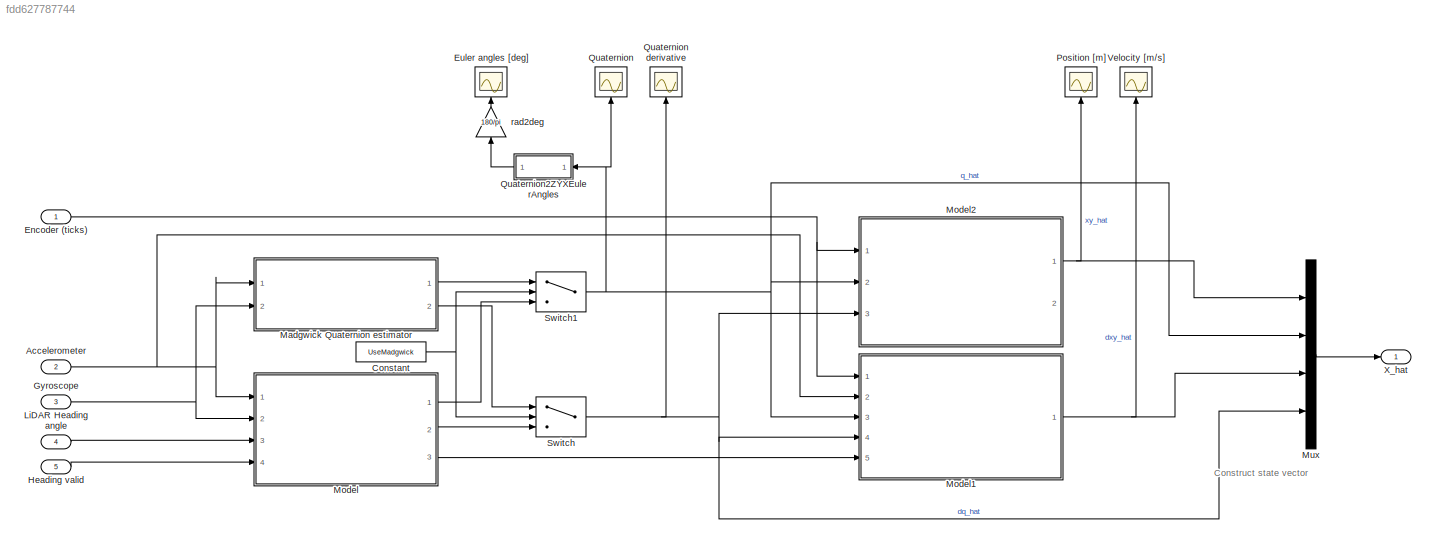
MODEL slx_fdd627787744
KIND model
CONFIG AbsTol = auto
CONFIG EnableMultiTasking = off
CONFIG FixedStep = auto
CONFIG InitFcn = Parameters_Estimators\nParameters_Simulation
CONFIG MaxStep = auto
CONFIG MinStep = auto
CONFIG PreLoadFcn = modelDir = fileparts(get_param(bdroot, 'FileName'));\naddpath(fullfile(modelDir));\naddpath(fullfile(modelDir,'../../Parameters'));\naddpath(fullfile(modelDir,'../../Misc'));\n\nParameters_Estimators\nParameters_Simulation
CONFIG RelTol = 1e-3
CONFIG SampleTimeConstraint = Unconstrained
CONFIG Solver = VariableStepAuto
CONFIG SolverName = VariableStepAuto
CONFIG StartTime = 0.0
CONFIG StopTime = 10.0
BLOCK [Inport] Accelerometer
  IconDisplay = Port number
  Port = 2
BLOCK [Constant] Constant
  Value = UseMadgwick
BLOCK [Inport] Encoder (ticks)
  IconDisplay = Port number
BLOCK [Scope] Euler angles [deg]
  Floating = off
  NumInputPorts = 1
  Ports = [1]
  ScopeSpecificationString = Simulink.scopes.TimeScopeBlockCfg('CurrentConfiguration', extmgr.ConfigurationSet(extmgr.Configuration('Core','General UI',true),extmgr.Configuration('Core','Source UI',true),extmgr.Configuration('Sources','WiredSimulink',true,'DataLoggingVariableName','ScopeData4'),extmgr.Configuration('Visuals','Time Domain',true,'SerializedDisplays',{struct('MinYLimReal','-38.07827','MaxYLimReal','15.34214','YL...<+1547ch>
BLOCK [Inport] Gyroscope
  IconDisplay = Port number
  Port = 3
BLOCK [Inport] Heading valid
  IconDisplay = Port number
  Port = 5
BLOCK [Inport] LiDAR Heading angle
  IconDisplay = Port number
  Port = 4
BLOCK [ModelReference] Madgwick Quaternion estimator
  ModelNameDialog = Madgwick
  ModelReferenceVersion = 1.8
  Ports = [2, 2]
BLOCK [ModelReference] Model
  ModelNameDialog = QEKF_
  ModelReferenceVersion = 1.28
  Ports = [4, 3]
BLOCK [ModelReference] Model1
  ModelNameDialog = VEKF
  ModelReferenceVersion = 1.29
  Ports = [5, 1]
BLOCK [ModelReference] Model2
  ModelNameDialog = KinematicsIntegration
  ModelReferenceVersion = 1.9
  Ports = [3, 2]
BLOCK [Mux] Mux
  DisplayOption = bar
  Ports = [4, 1]
BLOCK [Scope] Position [m]
  Floating = off
  NumInputPorts = 1
  Ports = [1]
  ScopeSpecificationString = Simulink.scopes.TimeScopeBlockCfg('CurrentConfiguration', extmgr.ConfigurationSet(extmgr.Configuration('Core','General UI',true),extmgr.Configuration('Core','Source UI',true),extmgr.Configuration('Sources','WiredSimulink',true),extmgr.Configuration('Visuals','Time Domain',true,'SerializedDisplays',{struct('MinYLimReal','-9.46197','MaxYLimReal','1.34726','YLabelReal','','MinYLimMag','0.00000','MaxY...<+1429ch>
BLOCK [Scope] Quaternion
  Floating = off
  NumInputPorts = 1
  Ports = [1]
  ScopeSpecificationString = Simulink.scopes.TimeScopeBlockCfg('CurrentConfiguration', extmgr.ConfigurationSet(extmgr.Configuration('Core','General UI',true),extmgr.Configuration('Core','Source UI',true),extmgr.Configuration('Sources','WiredSimulink',true,'DataLoggingVariableName','ScopeData2'),extmgr.Configuration('Visuals','Time Domain',true,'SerializedDisplays',{struct('MinYLimReal','-0.4426','MaxYLimReal','1.16029','YLabe...<+1482ch>
BLOCK [Scope] Quaternion derivative
  Floating = off
  NumInputPorts = 1
  Ports = [1]
  ScopeSpecificationString = Simulink.scopes.TimeScopeBlockCfg('CurrentConfiguration', extmgr.ConfigurationSet(extmgr.Configuration('Core','General UI',true),extmgr.Configuration('Core','Source UI',true),extmgr.Configuration('Sources','WiredSimulink',true,'DataLoggingVariableName','ScopeData3'),extmgr.Configuration('Visuals','Time Domain',true,'SerializedDisplays',{struct('MinYLimReal','-1.99714','MaxYLimReal','1.05638','YLab...<+1492ch>
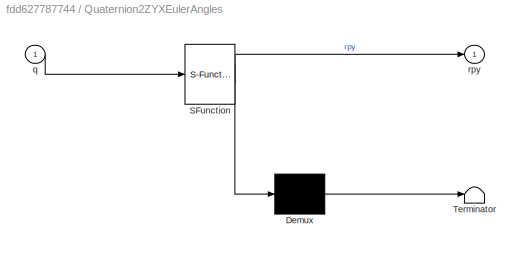
BLOCK [SubSystem] Quaternion2ZYXEulerAngles
  ErrorFcn = Stateflow.Translate.translate
  PermitHierarchicalResolution = ExplicitOnly
  Ports = [1, 1]
  RequestExecContextInheritance = off
  SFBlockType = MATLAB Function
  TreatAsAtomicUnit = on
BLOCK [Demux] Quaternion2ZYXEulerAngles/ Demux 
  Outputs = 1
  Ports = [1, 1]
BLOCK [S-Function] Quaternion2ZYXEulerAngles/ SFunction 
  EnableBusSupport = on
  FunctionName = sf_sfun
  PortCounts = [1 2]
  Ports = [1, 2]
  SFcnIsStateOwnerBlock = off
  SFunctionDeploymentMode = off
  Tag = Stateflow S-Function Estimators 1
BLOCK [Terminator] Quaternion2ZYXEulerAngles/ Terminator 
BLOCK [Inport] Quaternion2ZYXEulerAngles/q
  IconDisplay = Port number
BLOCK [Outport] Quaternion2ZYXEulerAngles/rpy
  IconDisplay = Port number
BLOCK [Switch] Switch
  Criteria = u2 > Threshold
  InputSameDT = off
  SaturateOnIntegerOverflow = off
BLOCK [Switch] Switch1
  Criteria = u2 > Threshold
  InputSameDT = off
  SaturateOnIntegerOverflow = off
BLOCK [Scope] Velocity [m//s]
  Floating = off
  NumInputPorts = 1
  Ports = [1]
  ScopeSpecificationString = Simulink.scopes.TimeScopeBlockCfg('CurrentConfiguration', extmgr.ConfigurationSet(extmgr.Configuration('Core','General UI',true),extmgr.Configuration('Core','Source UI',true),extmgr.Configuration('Sources','WiredSimulink',true,'DataLoggingVariableName','ScopeData1'),extmgr.Configuration('Visuals','Time Domain',true,'SerializedDisplays',{struct('MinYLimReal','-0.93798','MaxYLimReal','0.21896','YLab...<+1418ch>
BLOCK [Outport] X_hat
  IconDisplay = Port number
  SampleTime = Ts
BLOCK [Gain] rad2deg
  Gain = 180/pi
  OutDataTypeStr = Inherit: Inherit via internal rule
  ParamDataTypeStr = Inherit: Inherit via internal rule
  SaturateOnIntegerOverflow = off
ANNOTATION (root): Construct state vector
NET Accelerometer:1 -> Madgwick Quaternion estimator:1, Model1:2, Model:1
NET Constant:1 -> Switch1:2, Switch:2
NET Encoder (ticks):1 -> Model1:1, Model2:1
NET Gyroscope:1 -> Madgwick Quaternion estimator:2, Model:2
LINE Heading valid:1 -> Model:4
LINE LiDAR Heading angle:1 -> Model:3
LINE Madgwick Quaternion estimator:1 -> Switch1:1
LINE Madgwick Quaternion estimator:2 -> Switch:1
NET Model1:1 -> Mux:3, Velocity [m//s]:1
NET Model2:1 -> Mux:1, Position [m]:1
LINE Model:1 -> Switch1:3
LINE Model:2 -> Switch:3
LINE Model:3 -> Model1:5
LINE Mux:1 -> X_hat:1
LINE Quaternion2ZYXEulerAngles:1 -> rad2deg:1
NET Switch1:1 -> Model1:3, Model2:2, Mux:2, Quaternion2ZYXEulerAngles:1, Quaternion:1
NET Switch:1 -> Model1:4, Model2:3, Mux:4, Quaternion derivative:1
LINE rad2deg:1 -> Euler angles [deg]:1
note: NET lines group one-source signal fan-out (src -> all destinations, sorted); 1:1 wires keep LINE
CHART Quaternion2ZYXEulerAngles states=1 transitions=1
  STATE_LABEL 'eML_blk_kernel()'
  STATE_LABEL 'SCRIPT:\nfunction rpy = Quaternion2ZYXEulerAngles(q)\n    rpy = Quaternion2ZYXEulerAngles(q);\nend'
